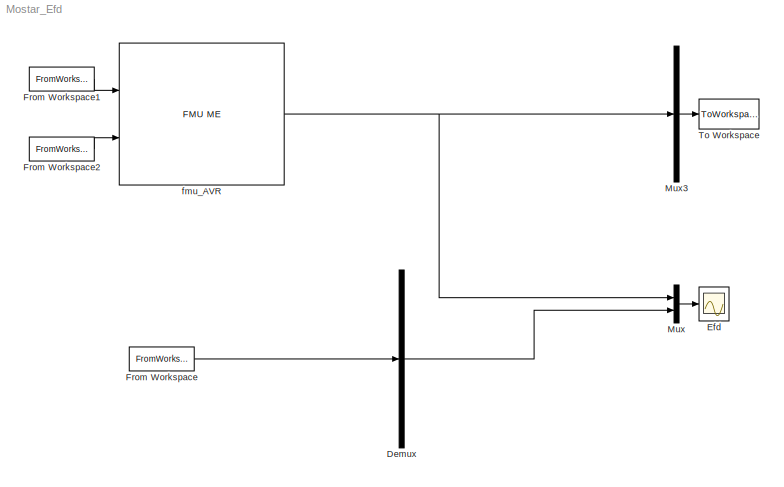
MODEL Mostar_Efd
KIND model
BLOCK [Demux] Demux
  Outputs = 1
  Ports = [1, 1]
  SID = 4
BLOCK [Scope] Efd
  Floating = off
  NumInputPorts = 1
  Ports = [1]
  SID = 46
  ScopeSpecificationString = Simulink.scopes.TimeScopeBlockCfg('CurrentConfiguration', extmgr.ConfigurationSet(extmgr.Configuration('Core','General UI',true),extmgr.Configuration('Core','Source UI',true),extmgr.Configuration('Sources','WiredSimulink',true,'DataLoggingSaveFormat','StructureWithTime','DataLoggingLimitDataPoints',true,'DataLoggingDecimation','1','DataLoggingDecimateData',true,'DataLoggingVariableName','ScopeData...<+1791ch>
BLOCK [FromWorkspace] From Workspace
  SID = 16
  VariableName = dataMeasuredS
BLOCK [FromWorkspace] From Workspace1
  SID = 52
  VariableName = inputSignalS(:,[1,2])
BLOCK [FromWorkspace] From Workspace2
  SID = 53
  VariableName = inputSignalS(:,[1,3])
BLOCK [Mux] Mux
  DisplayOption = bar
  Inputs = 2
  Ports = [2, 1]
  SID = 8
BLOCK [Mux] Mux3
  DisplayOption = bar
  Inputs = 1
  Ports = [1, 1]
  SID = 11
BLOCK [ToWorkspace] To Workspace
  MaxDataPoints = inf
  Ports = [1]
  SID = 2
  SampleTime = 0.5
  SaveFormat = Structure With Time
  VariableName = simout
BLOCK [Reference] fmu_AVR  REF=fmu_me_lib/FMU ME
  Description = Simulates an FMU for Model Exchange 1.0 or Model Exchange 2.0.
  MultiThreadCoSim = auto
  Ports = [2, 1]
  SID = 45
  SourceBlock = fmu_me_lib/FMU ME
  UserData = DataTag0
  UserDataPersistent = on
  dummy = 0
LINE Demux:1 -> Mux:2
LINE From Workspace1:1 -> fmu_AVR:1
LINE From Workspace2:1 -> fmu_AVR:2
LINE From Workspace:1 -> Demux:1
LINE Mux3:1 -> To Workspace:1
LINE Mux:1 -> Efd:1
NET fmu_AVR:1 -> Mux3:1, Mux:1
note: NET lines group one-source signal fan-out (src -> all destinations, sorted); 1:1 wires keep LINE
